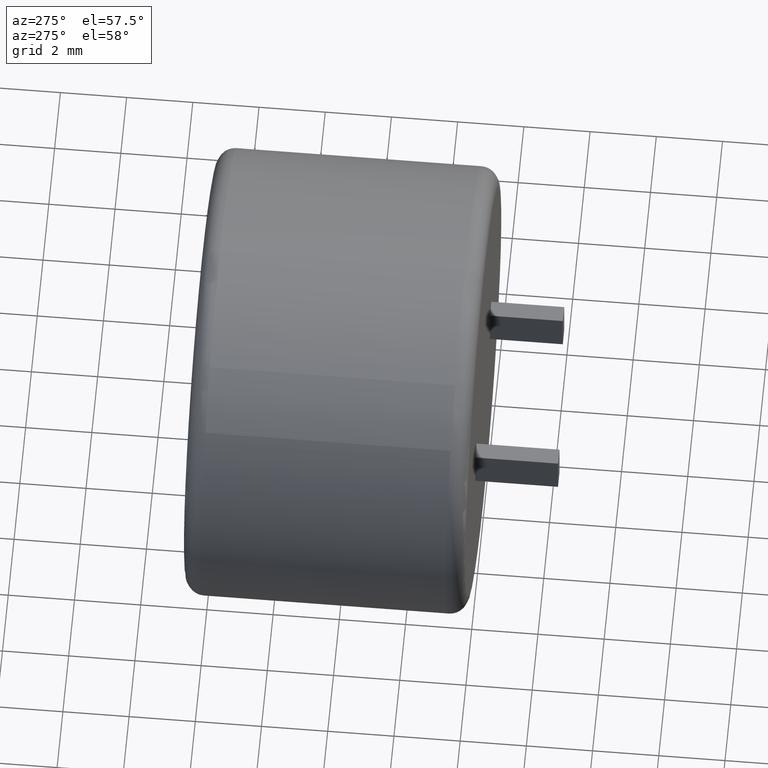
[diagram: clean part render]
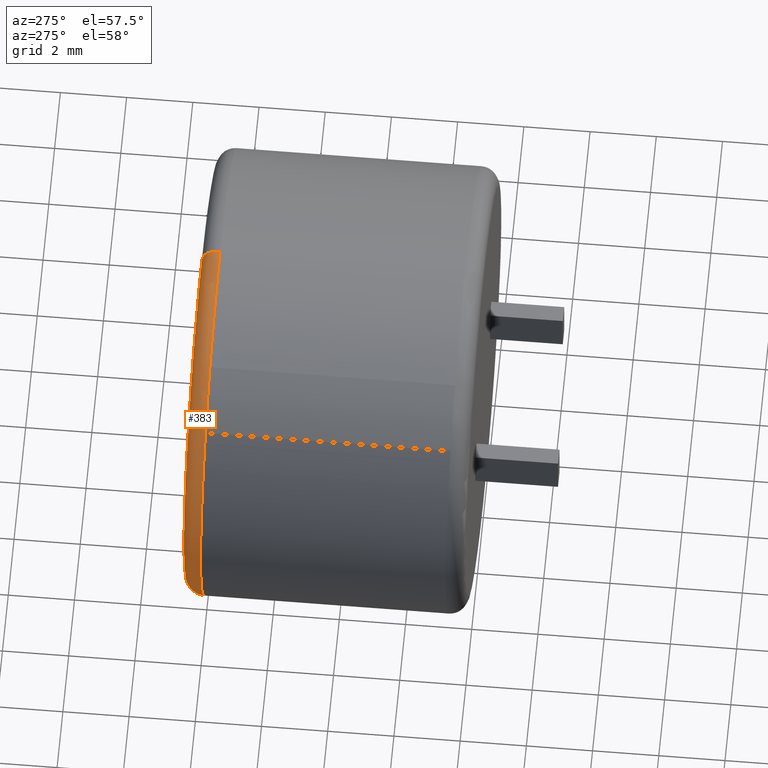
[diagram: same view with one face highlighted and labeled with its STEP entity id]
A machine part, auxiliary view. The second image highlights one B-rep face of the part: STEP entity #383.
In plain terms, the highlighted toroidal blend (fillet) surface has major radius 6.2017 mm and minor (blend) radius 0.5483 mm.
Its self-contained STEP definition (entity closure, byte-faithful):
#23 = DIRECTION ( 'NONE',  ( 0.0000000000000000000, 1.000000000000000000, 0.0000000000000000000 ) ) ;
#45 = AXIS2_PLACEMENT_3D ( 'NONE', #2155, #1073, #2163 ) ;
#50 = DIRECTION ( 'NONE',  ( -1.000000000000000000, 0.0000000000000000000, 0.0000000000000000000 ) ) ;
#85 = AXIS2_PLACEMENT_3D ( 'NONE', #1787, #1117, #1109 ) ;
#233 = DIRECTION ( 'NONE',  ( 0.0000000000000000000, 0.0000000000000000000, 1.000000000000000000 ) ) ;
#301 = DIRECTION ( 'NONE',  ( -0.0000000000000000000, -1.000000000000000000, -0.0000000000000000000 ) ) ;
#337 = CARTESIAN_POINT ( 'NONE',  ( -3.518969686245408300, 7.951750000000000500, 5.760152111471180400 ) ) ;
#357 = ORIENTED_EDGE ( 'NONE', *, *, #1163, .F. ) ;
#372 = VERTEX_POINT ( 'NONE', #1925 ) ;
#383 = ADVANCED_FACE ( 'NONE', ( #1274 ), #782, .T. ) ;
#417 = EDGE_CURVE ( 'NONE', #2767, #372, #2528, .T. ) ;
#481 = EDGE_CURVE ( 'NONE', #2768, #372, #2692, .T. ) ;
#624 = AXIS2_PLACEMENT_3D ( 'NONE', #913, #50, #1774 ) ;
#638 = CIRCLE ( 'NONE', #2127, 6.750000000000000000 ) ;
#647 = EDGE_CURVE ( 'NONE', #1338, #2385, #942, .T. ) ;
#734 = CARTESIAN_POINT ( 'NONE',  ( 0.0000000000000000000, 7.951750000000000500, 0.0000000000000000000 ) ) ;
#744 = DIRECTION ( 'NONE',  ( 0.0000000000000000000, 0.0000000000000000000, 1.000000000000000000 ) ) ;
#782 = TOROIDAL_SURFACE ( 'NONE', #45, 6.201749999999999700, 0.5482500000000000200 ) ;
#784 = EDGE_CURVE ( 'NONE', #2264, #1338, #1204, .T. ) ;
#884 = CARTESIAN_POINT ( 'NONE',  ( 0.0000000000000000000, 8.500000000000000000, 0.0000000000000000000 ) ) ;
#913 = CARTESIAN_POINT ( 'NONE',  ( 0.0000000000000000000, 7.951750000000000500, 6.201749999999999700 ) ) ;
#942 = CIRCLE ( 'NONE', #1454, 6.750000000000000000 ) ;
#996 = EDGE_LOOP ( 'NONE', ( #357, #1283, #1239, #1187, #1170, #2029 ) ) ;
#1014 = DIRECTION ( 'NONE',  ( -0.0000000000000000000, -1.000000000000000000, -0.0000000000000000000 ) ) ;
#1061 = AXIS2_PLACEMENT_3D ( 'NONE', #884, #23, #233 ) ;
#1073 = DIRECTION ( 'NONE',  ( 0.0000000000000000000, 1.000000000000000000, 0.0000000000000000000 ) ) ;
#1109 = DIRECTION ( 'NONE',  ( 1.224646799147352700E-016, 0.0000000000000000000, -1.000000000000000000 ) ) ;
#1117 = DIRECTION ( 'NONE',  ( 1.000000000000000000, -0.0000000000000000000, 1.224646799147353200E-016 ) ) ;
#1163 = EDGE_CURVE ( 'NONE', #2385, #2767, #2441, .T. ) ;
#1170 = ORIENTED_EDGE ( 'NONE', *, *, #481, .T. ) ;
#1187 = ORIENTED_EDGE ( 'NONE', *, *, #2418, .F. ) ;
#1204 = CIRCLE ( 'NONE', #1370, 6.750000000000000000 ) ;
#1219 = DIRECTION ( 'NONE',  ( 0.0000000000000000000, 0.0000000000000000000, 1.000000000000000000 ) ) ;
#1239 = ORIENTED_EDGE ( 'NONE', *, *, #784, .F. ) ;
#1256 = DIRECTION ( 'NONE',  ( -0.0000000000000000000, -1.000000000000000000, -0.0000000000000000000 ) ) ;
#1274 = FACE_OUTER_BOUND ( 'NONE', #996, .T. ) ;
#1283 = ORIENTED_EDGE ( 'NONE', *, *, #647, .F. ) ;
#1338 = VERTEX_POINT ( 'NONE', #1343 ) ;
#1343 = CARTESIAN_POINT ( 'NONE',  ( -5.047477323014629000, 7.951750000000000500, 4.481681902327861300 ) ) ;
#1370 = AXIS2_PLACEMENT_3D ( 'NONE', #1419, #1014, #1219 ) ;
#1419 = CARTESIAN_POINT ( 'NONE',  ( 0.0000000000000000000, 7.951750000000000500, 0.0000000000000000000 ) ) ;
#1454 = AXIS2_PLACEMENT_3D ( 'NONE', #734, #301, #744 ) ;
#1595 = CARTESIAN_POINT ( 'NONE',  ( 8.266365894244634300E-016, 7.951750000000000500, 6.750000000000000000 ) ) ;
#1680 = CARTESIAN_POINT ( 'NONE',  ( 0.0000000000000000000, 7.951750000000000500, -6.750000000000000000 ) ) ;
#1687 = CARTESIAN_POINT ( 'NONE',  ( 0.0000000000000000000, 7.951750000000000500, 0.0000000000000000000 ) ) ;
#1751 = DIRECTION ( 'NONE',  ( 0.0000000000000000000, 0.0000000000000000000, 1.000000000000000000 ) ) ;
#1774 = DIRECTION ( 'NONE',  ( 0.0000000000000000000, 0.0000000000000000000, 1.000000000000000000 ) ) ;
#1787 = CARTESIAN_POINT ( 'NONE',  ( 7.594953286612098300E-016, 7.951750000000000500, -6.201749999999999700 ) ) ;
#1925 = CARTESIAN_POINT ( 'NONE',  ( 0.0000000000000000000, 8.500000000000000000, 6.201749999999999700 ) ) ;
#2029 = ORIENTED_EDGE ( 'NONE', *, *, #417, .F. ) ;
#2127 = AXIS2_PLACEMENT_3D ( 'NONE', #1687, #1256, #1751 ) ;
#2155 = CARTESIAN_POINT ( 'NONE',  ( 0.0000000000000000000, 7.951750000000000500, 0.0000000000000000000 ) ) ;
#2163 = DIRECTION ( 'NONE',  ( 0.0000000000000000000, 0.0000000000000000000, 1.000000000000000000 ) ) ;
#2264 = VERTEX_POINT ( 'NONE', #337 ) ;
#2385 = VERTEX_POINT ( 'NONE', #1680 ) ;
#2418 = EDGE_CURVE ( 'NONE', #2768, #2264, #638, .T. ) ;
#2441 = CIRCLE ( 'NONE', #85, 0.5482500000000001300 ) ;
#2528 = CIRCLE ( 'NONE', #1061, 6.201749999999999700 ) ;
#2683 = CARTESIAN_POINT ( 'NONE',  ( 7.930659590428366300E-016, 8.500000000000000000, -6.201749999999999700 ) ) ;
#2692 = CIRCLE ( 'NONE', #624, 0.5482500000000001300 ) ;
#2767 = VERTEX_POINT ( 'NONE', #2683 ) ;
#2768 = VERTEX_POINT ( 'NONE', #1595 ) ;